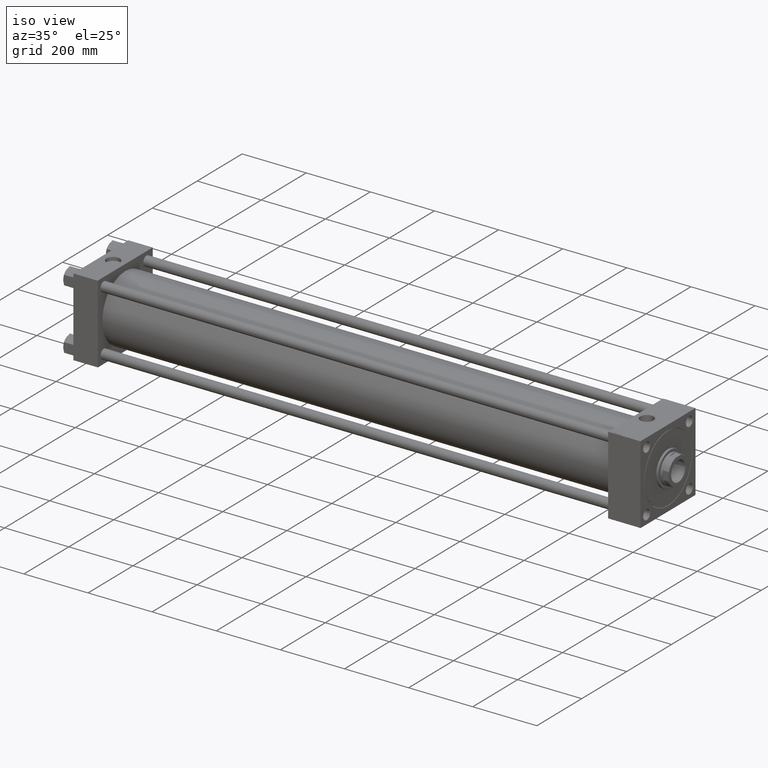
[diagram: clean part render]
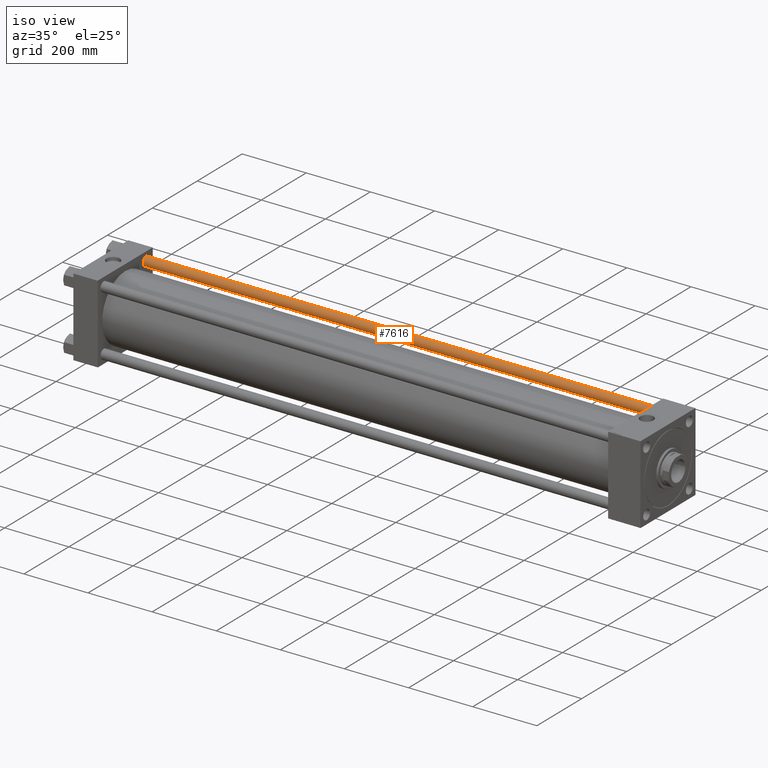
[diagram: same view with one face highlighted and labeled with its STEP entity id]
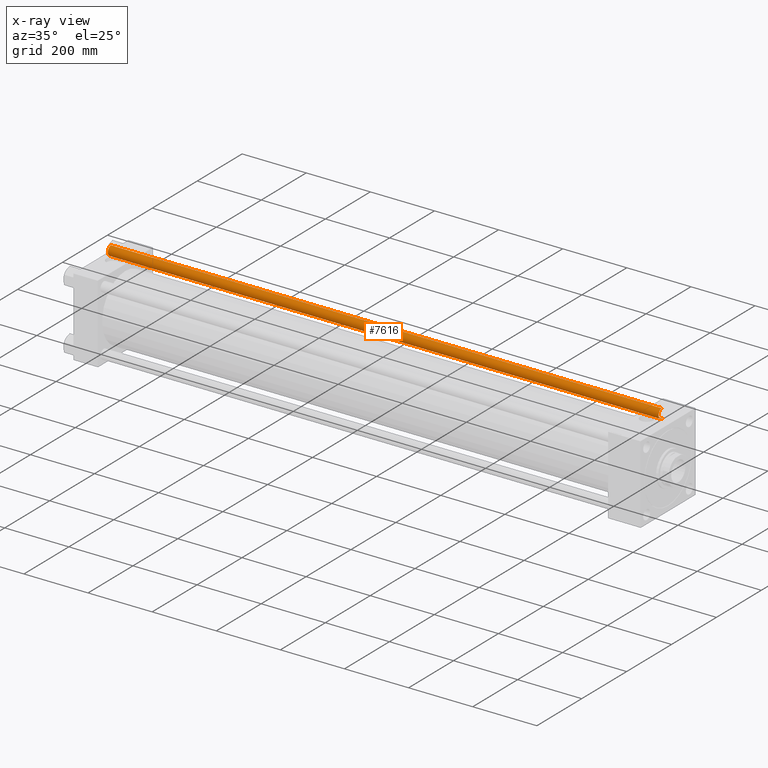
[diagram: x-ray of the same camera — body ghosted, the highlighted face saturated]
A machine part, iso view. The second image highlights one B-rep face of the part: STEP entity #7616.
The next image is the same camera in x-ray: the body ghosted, the highlighted face saturated — about 0% of this face is hidden behind the body in this view.
In plain terms, the highlighted cylindrical surface (edge-blend (fillet) strip) has radius 15 mm, axis along (-1, 0, 0).
Its self-contained STEP definition (entity closure, byte-faithful):
#1051 = CARTESIAN_POINT ( 'NONE',  ( 0.000000000000000000, 0.000000000000000000, 1718.500000000000000 ) ) ;
#1268 = CARTESIAN_POINT ( 'NONE',  ( 15.00000000000000000, 1.836970198721029589E-15, 0.5000000000003890221 ) ) ;
#4298 = LINE ( 'NONE', #16610, #44056 ) ;
#4317 = DIRECTION ( 'NONE',  ( -0.000000000000000000, -0.000000000000000000, -1.000000000000000000 ) ) ;
#5574 = CARTESIAN_POINT ( 'NONE',  ( 0.000000000000000000, 0.000000000000000000, 1719.000000000000000 ) ) ;
#7616 = ADVANCED_FACE ( 'NONE', ( #28664 ), #40464, .T. ) ;
#12274 = CARTESIAN_POINT ( 'NONE',  ( -15.00000000000000000, 0.000000000000000000, 1719.000000000000000 ) ) ;
#14005 = EDGE_CURVE ( 'NONE', #43717, #46741, #4298, .T. ) ;
#14200 = ORIENTED_EDGE ( 'NONE', *, *, #31478, .T. ) ;
#16211 = DIRECTION ( 'NONE',  ( -0.000000000000000000, -0.000000000000000000, 1.000000000000000000 ) ) ;
#16383 = LINE ( 'NONE', #12274, #40741 ) ;
#16404 = VERTEX_POINT ( 'NONE', #42685 ) ;
#16610 = CARTESIAN_POINT ( 'NONE',  ( 15.00000000000000000, 1.836970198721029589E-15, 1719.000000000000000 ) ) ;
#17715 = DIRECTION ( 'NONE',  ( 1.000000000000000000, 0.000000000000000000, 0.000000000000000000 ) ) ;
#18068 = CIRCLE ( 'NONE', #45940, 15.00000000000000000 ) ;
#18329 = AXIS2_PLACEMENT_3D ( 'NONE', #1051, #44398, #17715 ) ;
#20500 = EDGE_CURVE ( 'NONE', #23392, #46741, #18068, .T. ) ;
#20714 = ORIENTED_EDGE ( 'NONE', *, *, #20500, .T. ) ;
#20788 = CARTESIAN_POINT ( 'NONE',  ( 0.000000000000000000, 0.000000000000000000, 0.5000000000003890221 ) ) ;
#21741 = CARTESIAN_POINT ( 'NONE',  ( 15.00000000000000000, 1.836970198721029589E-15, 1718.500000000000000 ) ) ;
#23392 = VERTEX_POINT ( 'NONE', #33114 ) ;
#24066 = CIRCLE ( 'NONE', #18329, 15.00000000000000000 ) ;
#28317 = ORIENTED_EDGE ( 'NONE', *, *, #14005, .F. ) ;
#28664 = FACE_OUTER_BOUND ( 'NONE', #28891, .T. ) ;
#28891 = EDGE_LOOP ( 'NONE', ( #28317, #14200, #50040, #20714 ) ) ;
#29167 = DIRECTION ( 'NONE',  ( -1.000000000000000000, 0.000000000000000000, 0.000000000000000000 ) ) ;
#30094 = AXIS2_PLACEMENT_3D ( 'NONE', #5574, #37132, #29167 ) ;
#31478 = EDGE_CURVE ( 'NONE', #43717, #16404, #24066, .T. ) ;
#32253 = DIRECTION ( 'NONE',  ( -0.000000000000000000, -0.000000000000000000, -1.000000000000000000 ) ) ;
#32355 = DIRECTION ( 'NONE',  ( 1.000000000000000000, 0.000000000000000000, 0.000000000000000000 ) ) ;
#33114 = CARTESIAN_POINT ( 'NONE',  ( -15.00000000000000000, 0.000000000000000000, 0.5000000000003890221 ) ) ;
#37132 = DIRECTION ( 'NONE',  ( -0.000000000000000000, -0.000000000000000000, -1.000000000000000000 ) ) ;
#40464 = CYLINDRICAL_SURFACE ( 'NONE', #30094, 15.00000000000000000 ) ;
#40741 = VECTOR ( 'NONE', #4317, 1000.000000000000000 ) ;
#42685 = CARTESIAN_POINT ( 'NONE',  ( -15.00000000000000000, 0.000000000000000000, 1718.500000000000000 ) ) ;
#43503 = EDGE_CURVE ( 'NONE', #16404, #23392, #16383, .T. ) ;
#43717 = VERTEX_POINT ( 'NONE', #21741 ) ;
#44056 = VECTOR ( 'NONE', #32253, 1000.000000000000000 ) ;
#44398 = DIRECTION ( 'NONE',  ( 0.000000000000000000, 0.000000000000000000, -1.000000000000000000 ) ) ;
#45940 = AXIS2_PLACEMENT_3D ( 'NONE', #20788, #16211, #32355 ) ;
#46741 = VERTEX_POINT ( 'NONE', #1268 ) ;
#50040 = ORIENTED_EDGE ( 'NONE', *, *, #43503, .T. ) ;